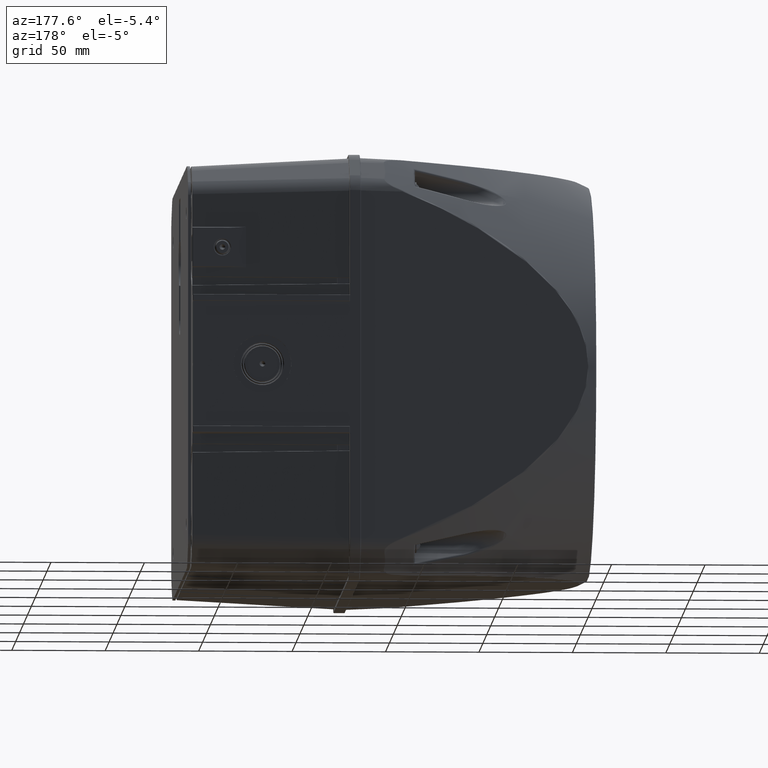
[diagram: clean part render]
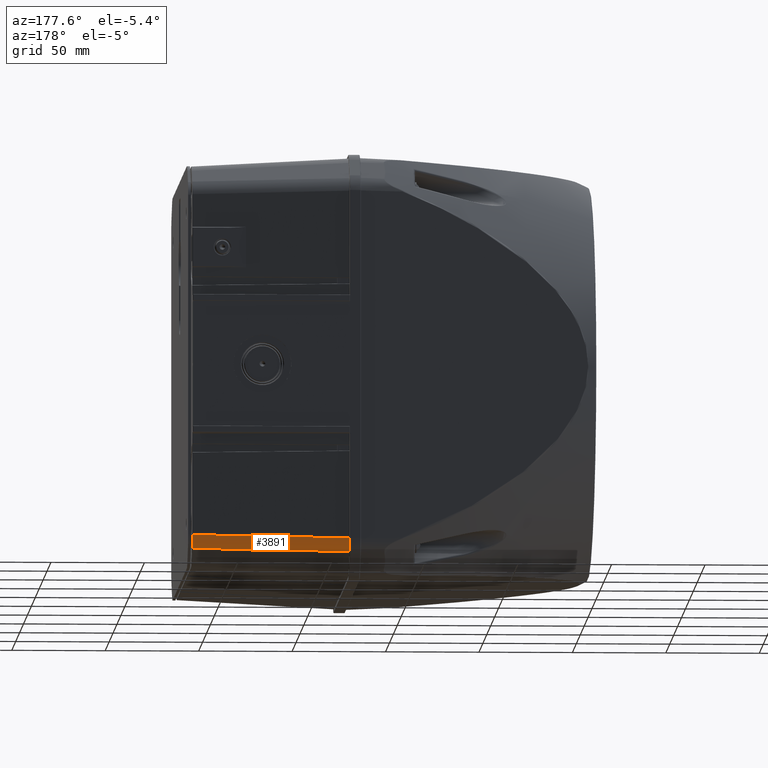
[diagram: same view with one face highlighted and labeled with its STEP entity id]
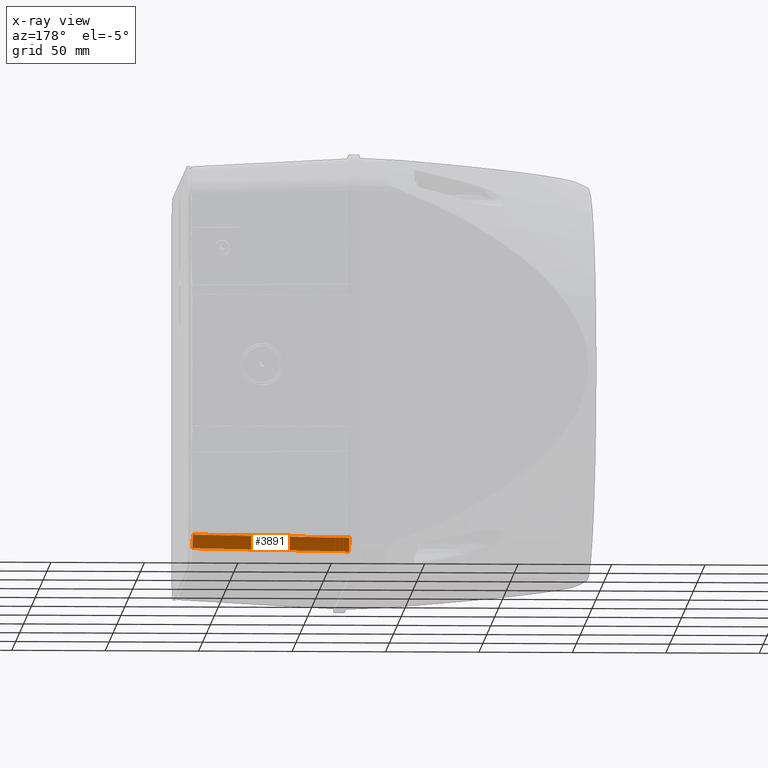
[diagram: x-ray of the same camera — body ghosted, the highlighted face saturated]
A machine part, auxiliary view. The second image highlights one B-rep face of the part: STEP entity #3891.
The next image is the same camera in x-ray: the body ghosted, the highlighted face saturated — about 0% of this face is hidden behind the body in this view.
In plain terms, the highlighted cylindrical surface (edge-blend (fillet) strip) has radius 10 mm, axis along (-0.9984, 0.0523, -0.0217).
Its self-contained STEP definition (entity closure, byte-faithful):
#643=ELLIPSE('',#23819,10.0154400190644,10.);
#644=ELLIPSE('',#23820,10.0168893122903,10.);
#1065=CYLINDRICAL_SURFACE('',#23821,10.);
#3891=ADVANCED_FACE('',(#5734),#1065,.T.);
#5734=FACE_OUTER_BOUND('',#7240,.T.);
#7240=EDGE_LOOP('',(#10626,#10627,#10628,#10629));
#10626=ORIENTED_EDGE('',*,*,#18453,.F.);
#10627=ORIENTED_EDGE('',*,*,#18478,.T.);
#10628=ORIENTED_EDGE('',*,*,#18415,.F.);
#10629=ORIENTED_EDGE('',*,*,#18479,.T.);
#16151=VERTEX_POINT('',#42321);
#16152=VERTEX_POINT('',#42322);
#16185=VERTEX_POINT('',#42446);
#16186=VERTEX_POINT('',#42448);
#18415=EDGE_CURVE('',#16151,#16152,#20984,.T.);
#18453=EDGE_CURVE('',#16185,#16186,#21014,.T.);
#18478=EDGE_CURVE('',#16185,#16152,#643,.T.);
#18479=EDGE_CURVE('',#16151,#16186,#644,.T.);
#20984=LINE('',#42320,#22351);
#21014=LINE('',#42447,#22381);
#22351=VECTOR('',#28077,1.);
#22381=VECTOR('',#28119,1.);
#23819=AXIS2_PLACEMENT_3D('',#42492,#28179,#28180);
#23820=AXIS2_PLACEMENT_3D('',#42493,#28181,#28182);
#23821=AXIS2_PLACEMENT_3D('',#42494,#28183,#28184);
#28077=DIRECTION('',(-0.0523236630107089,-0.0216731708520751,-0.998394965909964));
#28119=DIRECTION('',(0.0523236630107089,0.0216731708520751,0.998394965909964));
#28179=DIRECTION('',(0.00104485999439085,0.000432795180457768,0.999999360477757));
#28180=DIRECTION('',(0.923878941669776,0.382683187630523,-0.00113094830832621));
#28181=DIRECTION('',(0.0013058860235804,0.000540915701880473,-0.999999001035449));
#28182=DIRECTION('',(0.923878609588385,0.382683050077906,0.00141348084639427));
#28183=DIRECTION('',(0.0523236630107088,0.0216731708520751,0.998394965909964));
#28184=DIRECTION('',(0.998629534754573,0.,-0.0523359562429437));
#42320=CARTESIAN_POINT('',(109.567744542376,100.421878991926,-128.488827694031));
#42321=CARTESIAN_POINT('',(109.248218893927,100.289527134813,-134.585740267315));
#42322=CARTESIAN_POINT('',(104.86831466977,98.4753114032715,-218.159291447624));
#42446=CARTESIAN_POINT('',(107.793232858134,91.4139342440903,-218.159291447624));
#42447=CARTESIAN_POINT('',(112.394123906328,93.3196857152531,-130.369060471694));
#42448=CARTESIAN_POINT('',(112.173137082292,93.2281499756316,-134.585740267315));
#42492=CARTESIAN_POINT('',(97.7800579604037,91.4028003698532,-218.148824256376));
#42493=CARTESIAN_POINT('',(102.158727919502,93.2165048520673,-134.598824256376));
#42494=CARTESIAN_POINT('',(102.407828558782,93.3196857152531,-129.845700909264));